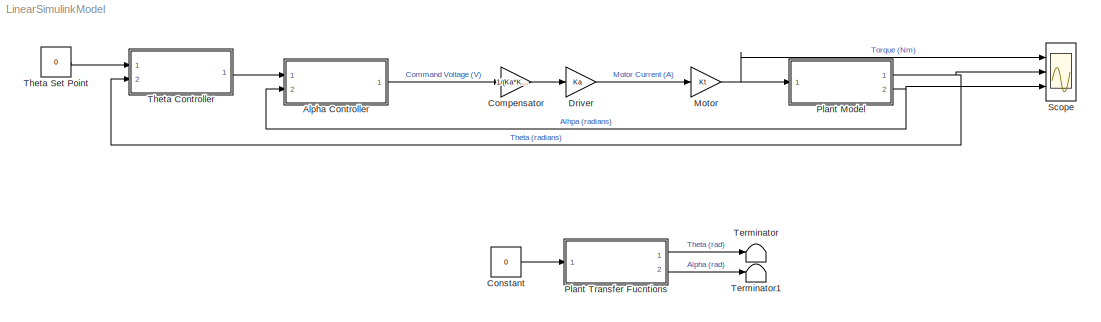
MODEL LinearSimulinkModel
KIND model
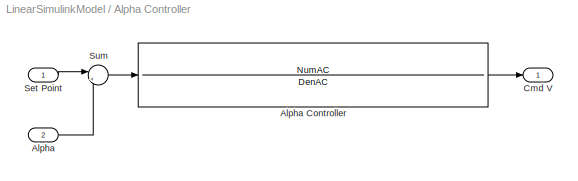
BLOCK [SubSystem] Alpha Controller
  FunctionWithSeparateData = off
  MaskHideContents = off
  MinAlgLoopOccurrences = off
  Opaque = off
  Ports = [2, 1]
  PropExecContextOutsideSubsystem = off
  RTWSystemCode = Auto
  RequestExecContextInheritance = off
  SID = 14
BLOCK [Inport] Alpha Controller/Alpha
  IconDisplay = Port number
  Port = 2
  SID = 17
BLOCK [TransferFcn] Alpha Controller/Alpha Controller
  Denominator = DenAC
  Numerator = NumAC
  SID = 18
BLOCK [Outport] Alpha Controller/Cmd V
  IconDisplay = Port number
  SID = 16
BLOCK [Inport] Alpha Controller/Set Point
  IconDisplay = Port number
  SID = 15
BLOCK [Sum] Alpha Controller/Sum
  IconShape = round
  InputSameDT = off
  Inputs = |+-
  OutDataTypeStr = Inherit: Inherit via internal rule
  Ports = [2, 1]
  SID = 19
  SaturateOnIntegerOverflow = off
BLOCK [Gain] Compensator
  Gain = 1/(Ka*Kt)
  OutDataTypeStr = Inherit: Inherit via internal rule
  ParamDataTypeStr = Inherit: Inherit via internal rule
  SID = 21
  SaturateOnIntegerOverflow = off
BLOCK [Constant] Constant
  SID = 57
  Value = 0
BLOCK [Gain] Driver
  Gain = Ka
  OutDataTypeStr = Inherit: Inherit via internal rule
  ParamDataTypeStr = Inherit: Inherit via internal rule
  SID = 13
  SaturateOnIntegerOverflow = off
BLOCK [Gain] Motor 
  Gain = Kt
  OutDataTypeStr = Inherit: Inherit via internal rule
  ParamDataTypeStr = Inherit: Inherit via internal rule
  SID = 12
  SaturateOnIntegerOverflow = off
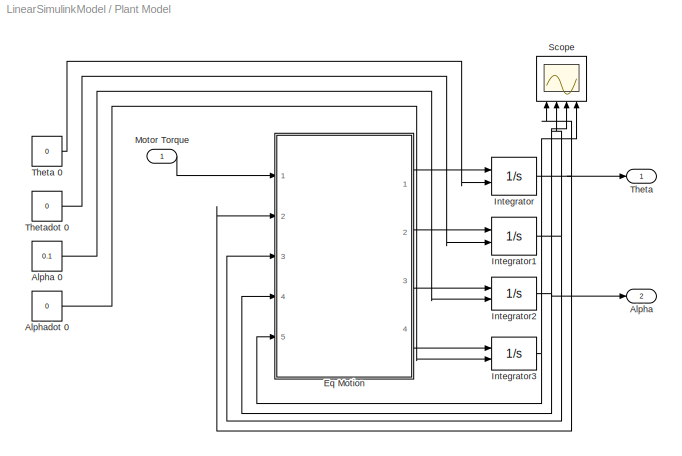
BLOCK [SubSystem] Plant Model
  FunctionWithSeparateData = off
  MaskHideContents = off
  MinAlgLoopOccurrences = off
  Opaque = off
  Ports = [1, 2]
  PropExecContextOutsideSubsystem = off
  RTWSystemCode = Auto
  RequestExecContextInheritance = off
  SID = 41
BLOCK [Outport] Plant Model/Alpha
  IconDisplay = Port number
  Port = 2
  SID = 54
BLOCK [Constant] Plant Model/Alpha 0
  SID = 43
  Value = 0.1
BLOCK [Constant] Plant Model/Alphadot 0
  SID = 44
  Value = 0
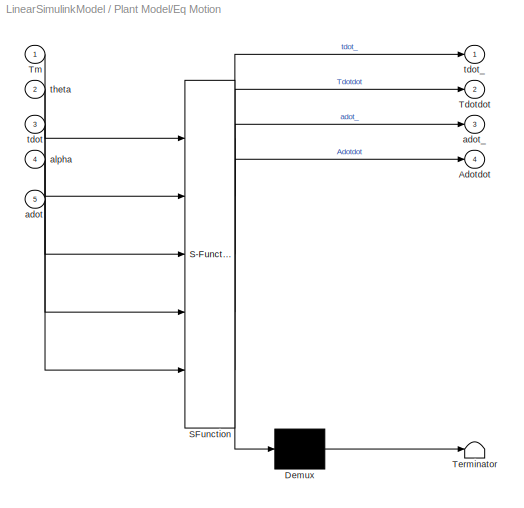
BLOCK [SubSystem] Plant Model/Eq Motion
  ErrorFcn = Stateflow.Translate.translate
  FunctionWithSeparateData = off
  MaskDescription = Embedded MATLAB block
  MaskDisplay = bgColor = Simulink.Root.ColorString2Rgb(get_param(gcbh, 'BackgroundColor')); image(imread('private/eml_membrane_16.png','png','BackgroundColor',bgColor(1:3)),'center'); disp([10 10 'eqMotionLinear']);
  MaskHideContents = off
  MaskIconFrame = on
  MaskIconOpaque = off
  MaskIconRotate = none
  MaskIconUnits = normalized
  MaskPortRotate = default
  MaskSelfModifiable = on
  MaskType = Stateflow
  MinAlgLoopOccurrences = off
  Opaque = off
  PermitHierarchicalResolution = ExplicitOnly
  Ports = [5, 4]
  PropExecContextOutsideSubsystem = off
  RTWSystemCode = Auto
  RequestExecContextInheritance = off
  SID = 45
  TreatAsAtomicUnit = on
BLOCK [Demux] Plant Model/Eq Motion/ Demux 
  Outputs = 1
  Ports = [1, 1]
  SID = 45::15
BLOCK [S-Function] Plant Model/Eq Motion/ SFunction 
  EnableBusSupport = on
  FunctionName = sf_sfun
  Parameters = I1zt,Ix2,Ixz2,Iy2,Iz2,ba,bt,g,l1,l2c,m2
  PortCounts = [5 5]
  Ports = [5, 5]
  SID = 45::14
  Tag = Stateflow S-Function LinearSimulinkModel 2
BLOCK [Terminator] Plant Model/Eq Motion/ Terminator 
  SID = 45::17
BLOCK [Outport] Plant Model/Eq Motion/Adotdot
  IconDisplay = Port number
  Port = 4
  SID = 45::35
BLOCK [Outport] Plant Model/Eq Motion/Tdotdot
  IconDisplay = Port number
  Port = 2
  SID = 45::33
BLOCK [Inport] Plant Model/Eq Motion/Tm
  IconDisplay = Port number
  SID = 45::1
BLOCK [Inport] Plant Model/Eq Motion/adot
  IconDisplay = Port number
  Port = 5
  SID = 45::21
BLOCK [Outport] Plant Model/Eq Motion/adot_
  IconDisplay = Port number
  Port = 3
  SID = 45::34
BLOCK [Inport] Plant Model/Eq Motion/alpha
  IconDisplay = Port number
  Port = 4
  SID = 45::20
BLOCK [Inport] Plant Model/Eq Motion/tdot
  IconDisplay = Port number
  Port = 3
  SID = 45::19
BLOCK [Outport] Plant Model/Eq Motion/tdot_
  IconDisplay = Port number
  SID = 45::5
BLOCK [Inport] Plant Model/Eq Motion/theta
  IconDisplay = Port number
  Port = 2
  SID = 45::18
BLOCK [Integrator] Plant Model/Integrator
  InitialConditionSource = external
  Ports = [2, 1]
  SID = 46
BLOCK [Integrator] Plant Model/Integrator1
  InitialConditionSource = external
  Ports = [2, 1]
  SID = 47
BLOCK [Integrator] Plant Model/Integrator2
  InitialConditionSource = external
  Ports = [2, 1]
  SID = 48
BLOCK [Integrator] Plant Model/Integrator3
  InitialConditionSource = external
  Ports = [2, 1]
  SID = 49
BLOCK [Inport] Plant Model/Motor Torque
  IconDisplay = Port number
  SID = 42
BLOCK [Scope] Plant Model/Scope
  DataFormat = StructureWithTime
  Floating = off
  LimitDataPoints = off
  NumInputPorts = 4
  Ports = [4]
  SID = 50
  SampleTime = 0
  SaveName = LinearSystemResponse
  SaveToWorkspace = on
  YMax = 5~5~5~5
  YMin = -5~-5~-5~-5
BLOCK [Outport] Plant Model/Theta
  IconDisplay = Port number
  SID = 53
BLOCK [Constant] Plant Model/Theta 0
  SID = 51
  Value = 0
BLOCK [Constant] Plant Model/Thetadot 0
  SID = 52
  Value = 0
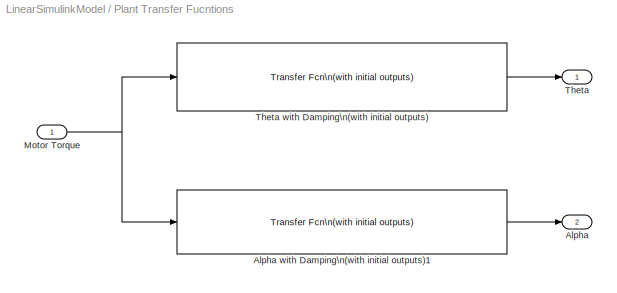
BLOCK [SubSystem] Plant Transfer Fucntions
  FunctionWithSeparateData = off
  MaskHideContents = off
  MinAlgLoopOccurrences = off
  Opaque = off
  Ports = [1, 2]
  PropExecContextOutsideSubsystem = off
  RTWSystemCode = Auto
  RequestExecContextInheritance = off
  SID = 1
BLOCK [Outport] Plant Transfer Fucntions/Alpha
  IconDisplay = Port number
  Port = 2
  SID = 7
BLOCK [Reference] Plant Transfer Fucntions/Alpha with Damping\n(with initial outputs)1  REF=simulink_extras/Additional\nLinear/Transfer Fcn\n(with initial outputs)
  D = DenB
  FunctionWithSeparateData = off
  GeneratePreprocessorConditionals = off
  N = NumBA
  Ports = [1, 1]
  RTWMemSecDataConstants = Inherit from model
  RTWMemSecDataInternal = Inherit from model
  RTWMemSecDataParameters = Inherit from model
  RTWMemSecFuncExecute = Inherit from model
  RTWMemSecFuncInitTerm = Inherit from model
  SID = 33
  ShowPortLabels = FromPortIcon
  SourceBlock = simulink_extras/Additional\nLinear/Transfer Fcn\n(with initial outputs)
  SourceType = Transfer Function with Initial Outputs
  SystemSampleTime = -1
  U0 = 0
  Y0 = .1
BLOCK [Inport] Plant Transfer Fucntions/Motor Torque
  IconDisplay = Port number
  SID = 2
BLOCK [Outport] Plant Transfer Fucntions/Theta
  IconDisplay = Port number
  SID = 3
BLOCK [Reference] Plant Transfer Fucntions/Theta with Damping\n(with initial outputs)  REF=simulink_extras/Additional\nLinear/Transfer Fcn\n(with initial outputs)
  D = DenB
  FunctionWithSeparateData = off
  GeneratePreprocessorConditionals = off
  N = NumBT
  Ports = [1, 1]
  RTWMemSecDataConstants = Inherit from model
  RTWMemSecDataInternal = Inherit from model
  RTWMemSecDataParameters = Inherit from model
  RTWMemSecFuncExecute = Inherit from model
  RTWMemSecFuncInitTerm = Inherit from model
  SID = 32
  ShowPortLabels = FromPortIcon
  SourceBlock = simulink_extras/Additional\nLinear/Transfer Fcn\n(with initial outputs)
  SourceType = Transfer Function with Initial Outputs
  SystemSampleTime = -1
  U0 = 0
  Y0 = 0
BLOCK [Scope] Scope
  DataFormat = StructureWithTime
  Floating = off
  LimitDataPoints = off
  NumInputPorts = 3
  Ports = [3]
  SID = 11
  SampleTime = 0
  YMax = 5~5~5
  YMin = -5~-5~-5
BLOCK [Terminator] Terminator
  SID = 55
BLOCK [Terminator] Terminator1
  SID = 56
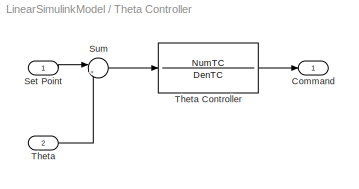
BLOCK [SubSystem] Theta Controller
  FunctionWithSeparateData = off
  MaskHideContents = off
  MinAlgLoopOccurrences = off
  Opaque = off
  Ports = [2, 1]
  PropExecContextOutsideSubsystem = off
  RTWSystemCode = Auto
  RequestExecContextInheritance = off
  SID = 34
BLOCK [Outport] Theta Controller/Command
  IconDisplay = Port number
  SID = 36
BLOCK [Inport] Theta Controller/Set Point
  IconDisplay = Port number
  SID = 35
BLOCK [Sum] Theta Controller/Sum
  IconShape = round
  InputSameDT = off
  Inputs = |+-
  OutDataTypeStr = Inherit: Inherit via internal rule
  Ports = [2, 1]
  SID = 38
  SaturateOnIntegerOverflow = off
BLOCK [Inport] Theta Controller/Theta
  IconDisplay = Port number
  Port = 2
  SID = 37
BLOCK [TransferFcn] Theta Controller/Theta Controller
  Denominator = DenTC
  Numerator = NumTC
  SID = 39
BLOCK [Constant] Theta Set Point
  SID = 20
  Value = 0
LINE Alpha Controller/Alpha Controller:1 -> Alpha Controller/Cmd V:1
LINE Alpha Controller/Alpha:1 -> Alpha Controller/Sum:2
LINE Alpha Controller/Set Point:1 -> Alpha Controller/Sum:1
LINE Alpha Controller/Sum:1 -> Alpha Controller/Alpha Controller:1
LINE Alpha Controller:1 -> Compensator:1
LINE Compensator:1 -> Driver:1
LINE Constant:1 -> Plant Transfer Fucntions:1
LINE Driver:1 -> Motor :1
NET Motor :1 -> Plant Model:1, Scope:1
LINE Plant Model/Alpha 0:1 -> Plant Model/Integrator2:2
LINE Plant Model/Alphadot 0:1 -> Plant Model/Integrator3:2
LINE Plant Model/Eq Motion/ Demux :1 -> Plant Model/Eq Motion/ Terminator :1
LINE Plant Model/Eq Motion/ SFunction :1 -> Plant Model/Eq Motion/ Demux :1
LINE Plant Model/Eq Motion/ SFunction :2 -> Plant Model/Eq Motion/tdot_:1
LINE Plant Model/Eq Motion/ SFunction :3 -> Plant Model/Eq Motion/Tdotdot:1
LINE Plant Model/Eq Motion/ SFunction :4 -> Plant Model/Eq Motion/adot_:1
LINE Plant Model/Eq Motion/ SFunction :5 -> Plant Model/Eq Motion/Adotdot:1
LINE Plant Model/Eq Motion/Tm:1 -> Plant Model/Eq Motion/ SFunction :1
LINE Plant Model/Eq Motion/adot:1 -> Plant Model/Eq Motion/ SFunction :5
LINE Plant Model/Eq Motion/alpha:1 -> Plant Model/Eq Motion/ SFunction :4
LINE Plant Model/Eq Motion/tdot:1 -> Plant Model/Eq Motion/ SFunction :3
LINE Plant Model/Eq Motion/theta:1 -> Plant Model/Eq Motion/ SFunction :2
LINE Plant Model/Eq Motion:1 -> Plant Model/Integrator:1
LINE Plant Model/Eq Motion:2 -> Plant Model/Integrator1:1
LINE Plant Model/Eq Motion:3 -> Plant Model/Integrator2:1
LINE Plant Model/Eq Motion:4 -> Plant Model/Integrator3:1
NET Plant Model/Integrator1:1 -> Plant Model/Eq Motion:3, Plant Model/Scope:2
NET Plant Model/Integrator2:1 -> Plant Model/Alpha:1, Plant Model/Eq Motion:4, Plant Model/Scope:3
NET Plant Model/Integrator3:1 -> Plant Model/Eq Motion:5, Plant Model/Scope:4
NET Plant Model/Integrator:1 -> Plant Model/Eq Motion:2, Plant Model/Scope:1, Plant Model/Theta:1
LINE Plant Model/Motor Torque:1 -> Plant Model/Eq Motion:1
LINE Plant Model/Theta 0:1 -> Plant Model/Integrator:2
LINE Plant Model/Thetadot 0:1 -> Plant Model/Integrator1:2
NET Plant Model:1 -> Scope:2, Theta Controller:2
NET Plant Model:2 -> Alpha Controller:2, Scope:3
LINE Plant Transfer Fucntions/Alpha with Damping\n(with initial outputs)1:1 -> Plant Transfer Fucntions/Alpha:1
NET Plant Transfer Fucntions/Motor Torque:1 -> Plant Transfer Fucntions/Alpha with Damping\n(with initial outputs)1:1, Plant Transfer Fucntions/Theta with Damping\n(with initial outputs):1
LINE Plant Transfer Fucntions/Theta with Damping\n(with initial outputs):1 -> Plant Transfer Fucntions/Theta:1
LINE Plant Transfer Fucntions:1 -> Terminator:1
LINE Plant Transfer Fucntions:2 -> Terminator1:1
LINE Theta Controller/Set Point:1 -> Theta Controller/Sum:1
LINE Theta Controller/Sum:1 -> Theta Controller/Theta Controller:1
LINE Theta Controller/Theta Controller:1 -> Theta Controller/Command:1
LINE Theta Controller/Theta:1 -> Theta Controller/Sum:2
LINE Theta Controller:1 -> Alpha Controller:1
LINE Theta Set Point:1 -> Theta Controller:1
note: NET lines group one-source signal fan-out (src -> all destinations, sorted); 1:1 wires keep LINE
CHART Plant Model/Eq Motion states=1 transitions=1
  STATE_LABEL 'eML_blk_kernel()'
